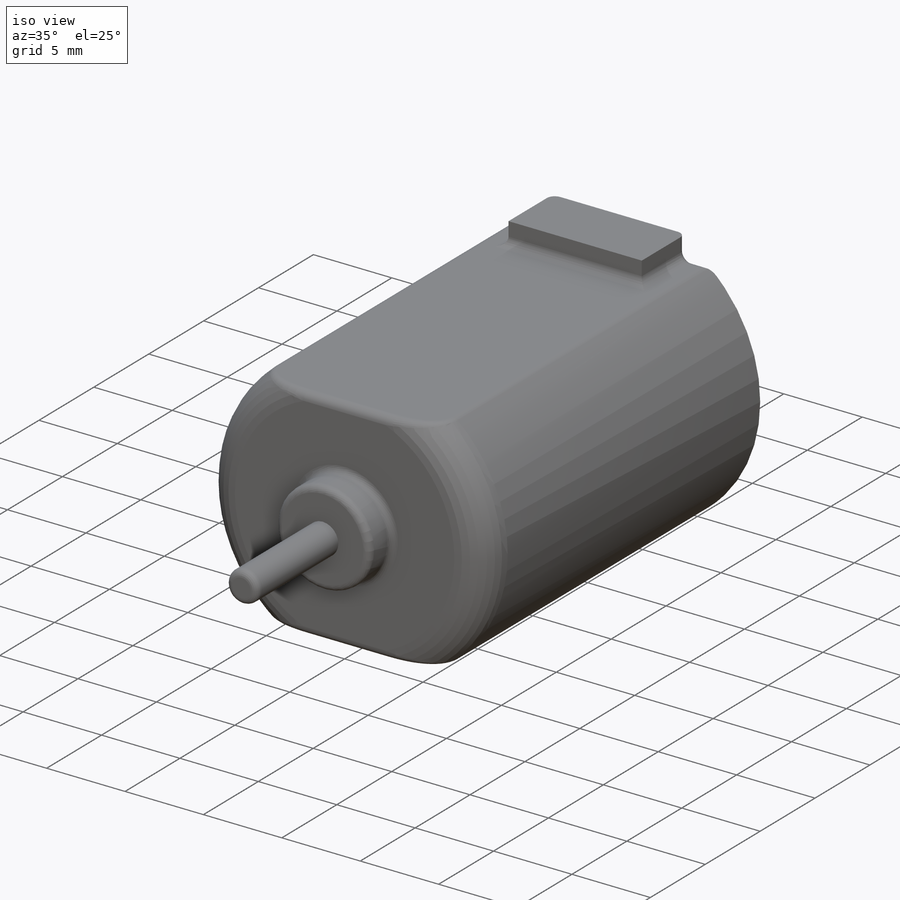
[diagram: iso view]
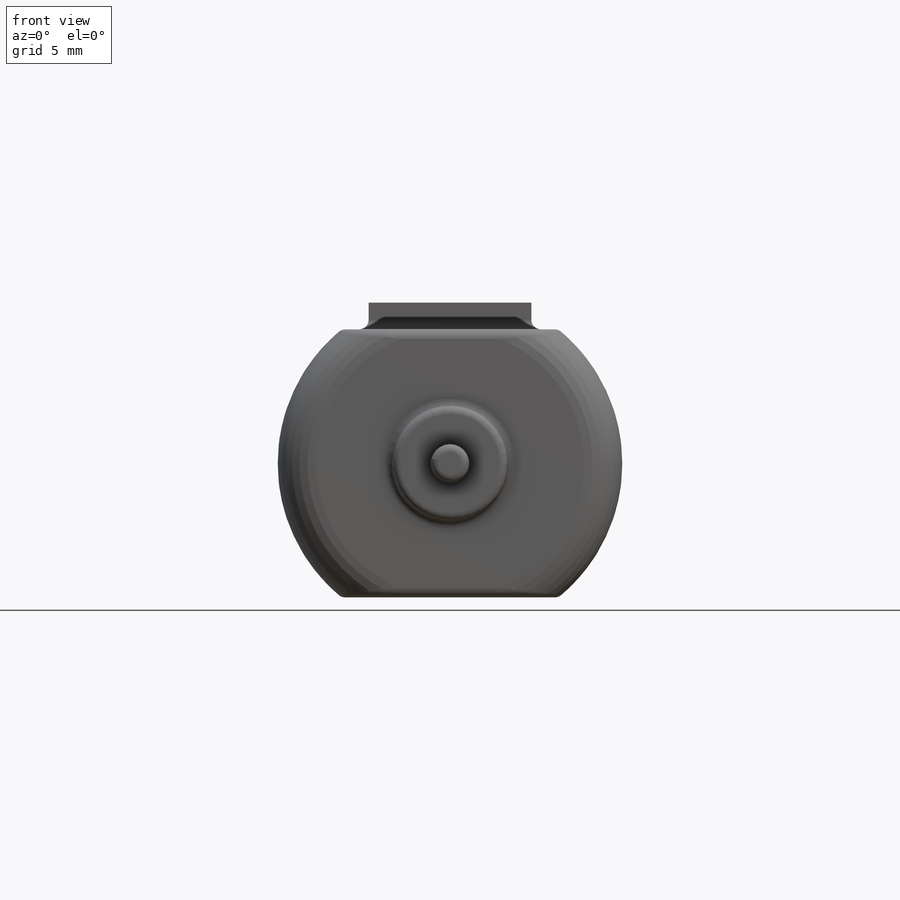
[diagram: front view]
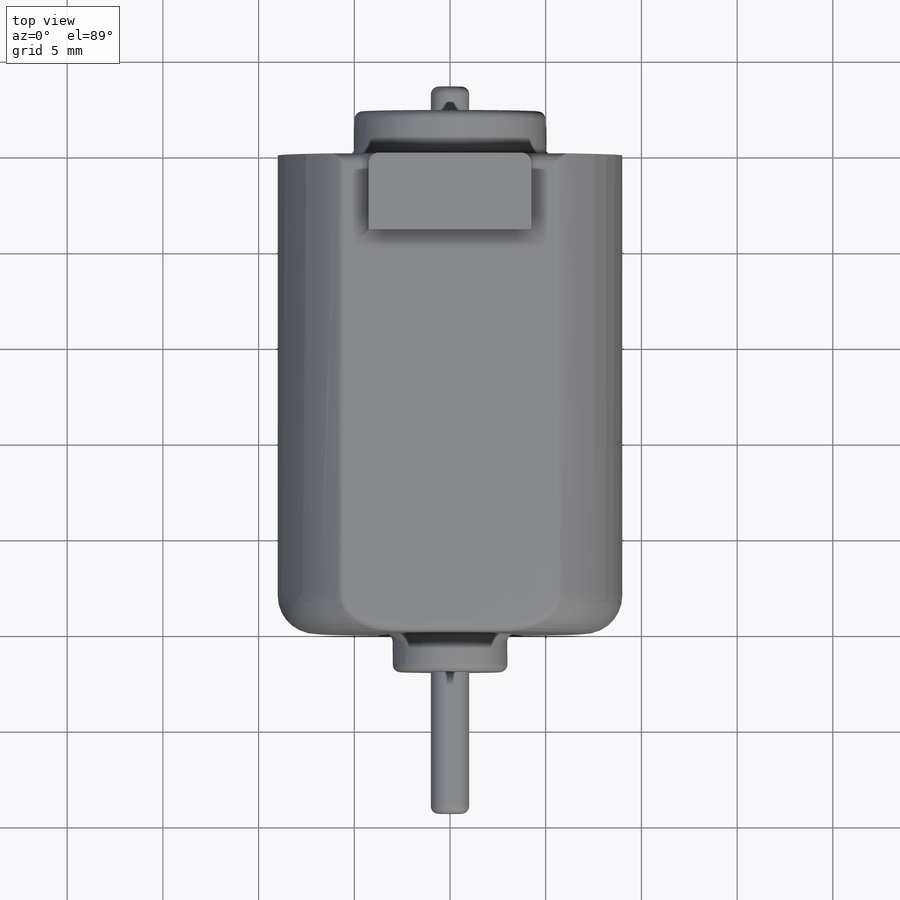
[diagram: top view]
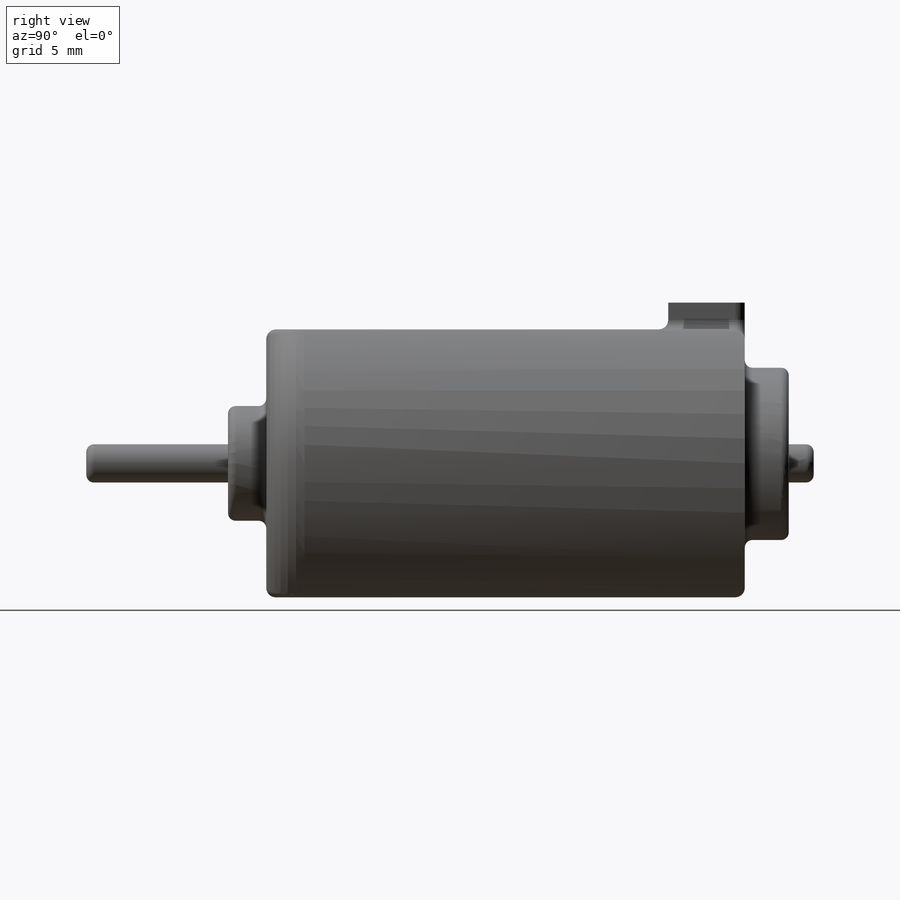
[diagram: right view]
SOLIDWORKS PART (.sldprt)
format: sldprt  version: not decoded by parser v0  size: 375,808 bytes
history: native  units: mm
features: sketch x6, extrude x6, fillet x4, material x1 (+16 scaffold rows collapsed)
feature tree (33):
  scaffold x16  (default folders/planes/origin — collapsed)
  material  "Material <not specified>"
  sketch  "Sketch1"  dims[D2=9.0mm D1=14.0mm]
  extrude  "Boss-Extrude1"  Depth=25mm
  sketch  "Sketch2"  dims[D1=6.0mm]
  extrude  "Boss-Extrude2"  Depth=2mm
  sketch  "Sketch3"  dims[D1=2.0mm]
  extrude  "Boss-Extrude3"  Depth=9.4mm
  sketch  "Sketch4"  dims[D2=5.0mm D1=4.0mm]
  extrude  "Boss-Extrude4"  Depth=2.3mm
  sketch  "Sketch5"  dims[D1=8.5mm D2=1.4mm]
  extrude  "Boss-Extrude5"  Depth=4mm
  sketch  "Sketch6"  dims[D1=2.0mm]
  extrude  "Boss-Extrude6"  Depth=38mm
  fillet  "Fillet1"  Radius=2mm
  fillet  "Fillet2"  Radius=0.5mm
  fillet  "Fillet4"  Radius=0.4mm
  fillet  "Fillet5"  Radius=0.4mm
decode coverage: 16 of 16 modeling features carry decoded parameters
note: suppression state not decoded; provenance and decode notes live in map.json
